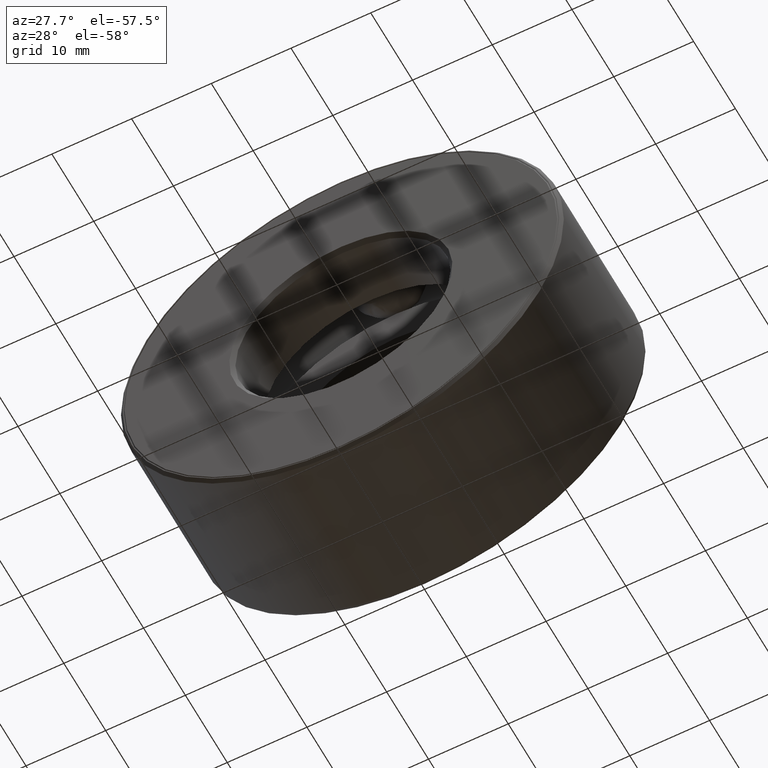
[diagram: clean part render]
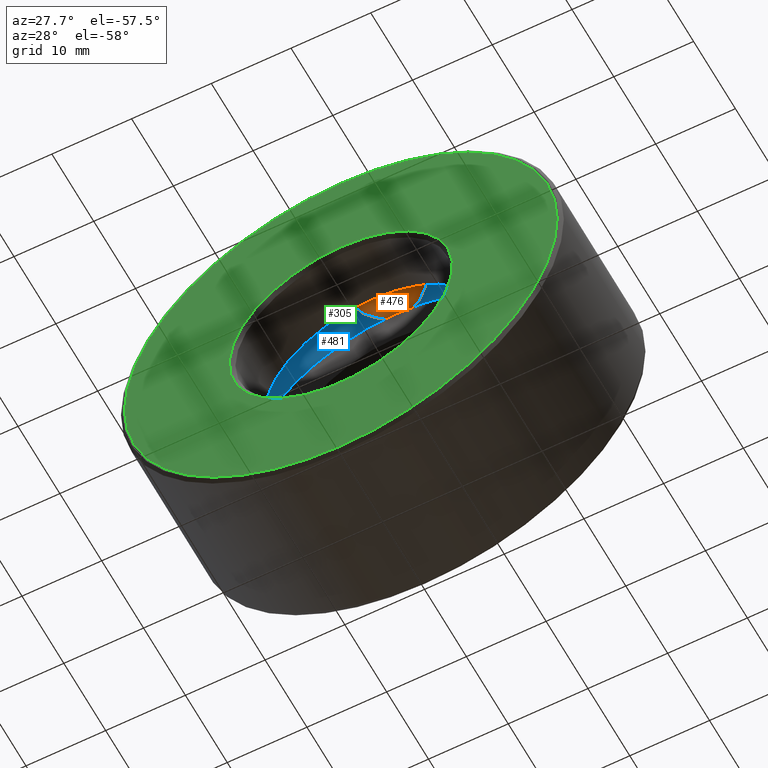
[diagram: same view with three faces highlighted in distinct colors, each labeled with its STEP entity id]
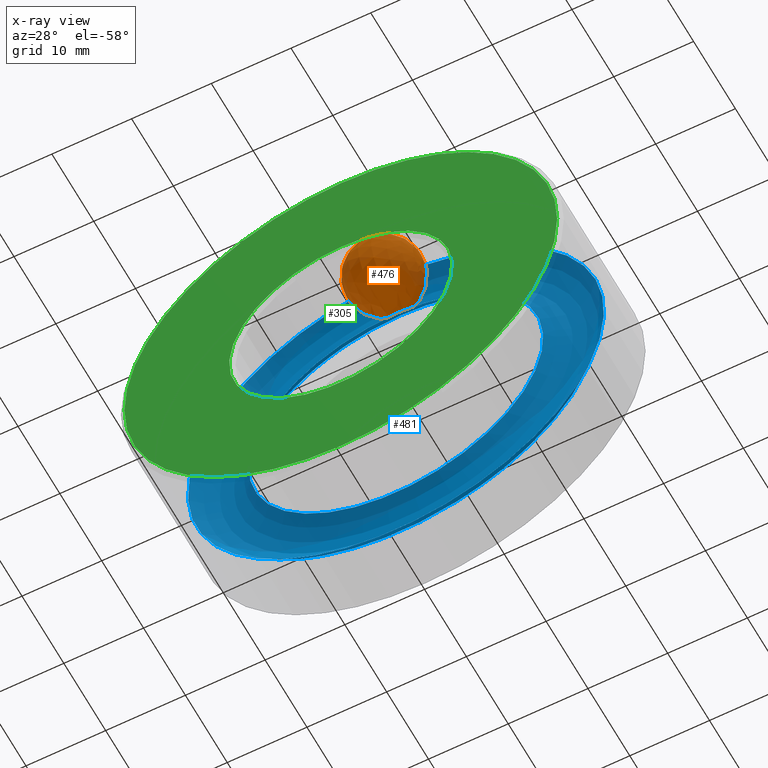
[diagram: x-ray of the same camera — body ghosted, the three highlighted faces saturated]
A machine part, auxiliary view with three faces highlighted in distinct colors.
The next image is the same camera in x-ray (body ghosted, the three faces saturated) — at least one of them is partly hidden behind the body in this view.
Their STEP definitions:

[orange] entity #476 — the highlighted spherical surface has radius 4.7625 mm.
#128 = AXIS2_PLACEMENT_3D ( 'NONE', #594, #456, #374 ) ;
#374 = DIRECTION ( 'NONE',  ( -3.491481338843134500E-015, 0.0000000000000000000, -1.000000000000000000 ) ) ;
#456 = DIRECTION ( 'NONE',  ( -1.000000000000000000, 0.0000000000000000000, 3.491481338843134500E-015 ) ) ;
#476 = ADVANCED_FACE ( 'NONE', ( ), #602, .T. ) ;
#594 = CARTESIAN_POINT ( 'NONE',  ( 3.062902004500138800E-015, 0.4062500000000000600, 0.8772500000000000900 ) ) ;
#602 = SPHERICAL_SURFACE ( 'NONE', #128, 0.1874999999999999700 ) ;

[blue] entity #481 — the highlighted toroidal blend (fillet) surface has major radius 22.2822 mm and minor (blend) radius 4.7625 mm.
#3 = CARTESIAN_POINT ( 'NONE',  ( 0.0000000000000000000, 0.5187499999999999300, 0.7272500000000000600 ) ) ;
#60 = EDGE_LOOP ( 'NONE', ( #254 ) ) ;
#78 = ORIENTED_EDGE ( 'NONE', *, *, #580, .T. ) ;
#112 = FACE_OUTER_BOUND ( 'NONE', #429, .T. ) ;
#145 = FACE_OUTER_BOUND ( 'NONE', #60, .T. ) ;
#162 = CIRCLE ( 'NONE', #371, 0.7272500000000000600 ) ;
#170 = VERTEX_POINT ( 'NONE', #440 ) ;
#238 = CARTESIAN_POINT ( 'NONE',  ( 0.0000000000000000000, 0.5187499999999999300, 0.0000000000000000000 ) ) ;
#239 = VERTEX_POINT ( 'NONE', #3 ) ;
#254 = ORIENTED_EDGE ( 'NONE', *, *, #358, .F. ) ;
#278 = DIRECTION ( 'NONE',  ( -0.0000000000000000000, 1.000000000000000000, -0.0000000000000000000 ) ) ;
#282 = DIRECTION ( 'NONE',  ( 0.0000000000000000000, 0.0000000000000000000, 1.000000000000000000 ) ) ;
#291 = DIRECTION ( 'NONE',  ( -0.0000000000000000000, 1.000000000000000000, -0.0000000000000000000 ) ) ;
#326 = DIRECTION ( 'NONE',  ( 0.0000000000000000000, 0.0000000000000000000, 1.000000000000000000 ) ) ;
#358 = EDGE_CURVE ( 'NONE', #170, #170, #582, .T. ) ;
#367 = TOROIDAL_SURFACE ( 'NONE', #452, 0.8772500000000000900, 0.1874999999999999700 ) ;
#371 = AXIS2_PLACEMENT_3D ( 'NONE', #238, #291, #561 ) ;
#376 = CARTESIAN_POINT ( 'NONE',  ( 0.0000000000000000000, 0.5187499999999999300, 0.0000000000000000000 ) ) ;
#429 = EDGE_LOOP ( 'NONE', ( #78 ) ) ;
#440 = CARTESIAN_POINT ( 'NONE',  ( 0.0000000000000000000, 0.5187499999999999300, 1.027250000000000000 ) ) ;
#452 = AXIS2_PLACEMENT_3D ( 'NONE', #550, #278, #326 ) ;
#481 = ADVANCED_FACE ( 'NONE', ( #112, #145 ), #367, .F. ) ;
#508 = DIRECTION ( 'NONE',  ( -0.0000000000000000000, 1.000000000000000000, -0.0000000000000000000 ) ) ;
#550 = CARTESIAN_POINT ( 'NONE',  ( 0.0000000000000000000, 0.4062500000000000600, 0.0000000000000000000 ) ) ;
#561 = DIRECTION ( 'NONE',  ( 0.0000000000000000000, 0.0000000000000000000, 1.000000000000000000 ) ) ;
#580 = EDGE_CURVE ( 'NONE', #239, #239, #162, .T. ) ;
#582 = CIRCLE ( 'NONE', #598, 1.027250000000000000 ) ;
#598 = AXIS2_PLACEMENT_3D ( 'NONE', #376, #508, #282 ) ;

[green] entity #305 — the highlighted planar face has unit normal (-0, 1, 0).
#15 = EDGE_CURVE ( 'NONE', #592, #592, #392, .T. ) ;
#35 = ORIENTED_EDGE ( 'NONE', *, *, #15, .F. ) ;
#57 = DIRECTION ( 'NONE',  ( -0.0000000000000000000, 1.000000000000000000, -0.0000000000000000000 ) ) ;
#64 = CIRCLE ( 'NONE', #567, 0.5512500000000000200 ) ;
#69 = CARTESIAN_POINT ( 'NONE',  ( -8.159528204279590800E-033, -1.440622965408888800E-017, 0.0000000000000000000 ) ) ;
#71 = DIRECTION ( 'NONE',  ( 0.0000000000000000000, 0.0000000000000000000, 1.000000000000000000 ) ) ;
#110 = DIRECTION ( 'NONE',  ( -0.0000000000000000000, 1.000000000000000000, 0.0000000000000000000 ) ) ;
#113 = PLANE ( 'NONE',  #469 ) ;
#127 = FACE_BOUND ( 'NONE', #342, .T. ) ;
#175 = DIRECTION ( 'NONE',  ( -0.0000000000000000000, 1.000000000000000000, -0.0000000000000000000 ) ) ;
#250 = CARTESIAN_POINT ( 'NONE',  ( 0.0000000000000000000, 3.414809992080329000E-017, 0.5512500000000000200 ) ) ;
#272 = EDGE_CURVE ( 'NONE', #427, #427, #64, .T. ) ;
#279 = EDGE_LOOP ( 'NONE', ( #35 ) ) ;
#305 = ADVANCED_FACE ( 'NONE', ( #354, #127 ), #113, .F. ) ;
#342 = EDGE_LOOP ( 'NONE', ( #535 ) ) ;
#354 = FACE_OUTER_BOUND ( 'NONE', #279, .T. ) ;
#392 = CIRCLE ( 'NONE', #411, 1.068750000000000100 ) ;
#400 = CARTESIAN_POINT ( 'NONE',  ( 0.0000000000000000000, -6.296055922898108400E-017, 1.068750000000000100 ) ) ;
#401 = DIRECTION ( 'NONE',  ( 0.0000000000000000000, 0.0000000000000000000, 1.000000000000000000 ) ) ;
#411 = AXIS2_PLACEMENT_3D ( 'NONE', #506, #175, #503 ) ;
#427 = VERTEX_POINT ( 'NONE', #250 ) ;
#469 = AXIS2_PLACEMENT_3D ( 'NONE', #69, #110, #71 ) ;
#497 = CARTESIAN_POINT ( 'NONE',  ( 0.0000000000000000000, 3.414809992080329000E-017, 0.0000000000000000000 ) ) ;
#503 = DIRECTION ( 'NONE',  ( 0.0000000000000000000, 0.0000000000000000000, 1.000000000000000000 ) ) ;
#506 = CARTESIAN_POINT ( 'NONE',  ( 0.0000000000000000000, -6.296055922898108400E-017, 0.0000000000000000000 ) ) ;
#535 = ORIENTED_EDGE ( 'NONE', *, *, #272, .T. ) ;
#567 = AXIS2_PLACEMENT_3D ( 'NONE', #497, #57, #401 ) ;
#592 = VERTEX_POINT ( 'NONE', #400 ) ;